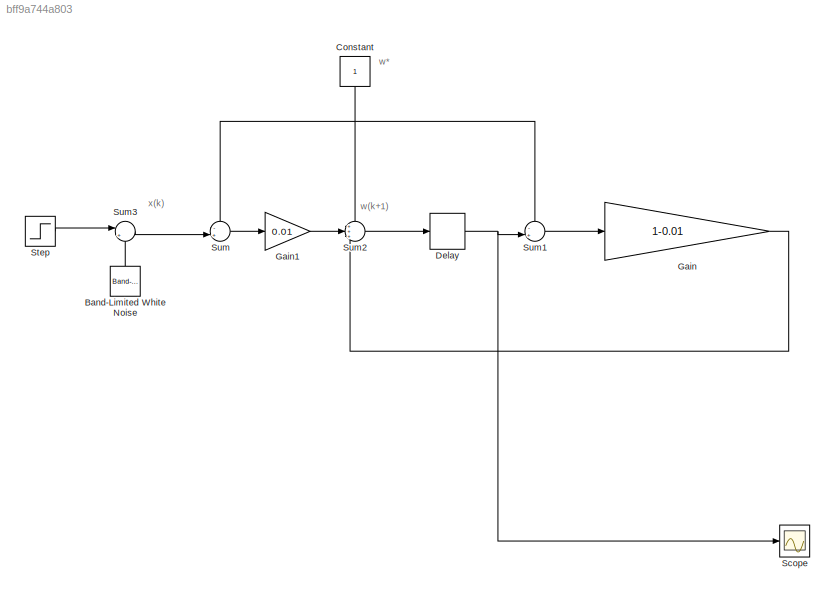
MODEL slx_bff9a744a803
KIND model
CONFIG AbsTol = auto
CONFIG EnableMultiTasking = off
CONFIG FixedStep = 1e-3
CONFIG MaxStep = auto
CONFIG MinStep = auto
CONFIG RelTol = 1e-3
CONFIG SampleTimeConstraint = Unconstrained
CONFIG SolverName = FixedStepAuto
CONFIG StartTime = 0.0
CONFIG StopTime = 10.0
BLOCK [Reference] Band-Limited White Noise  REF=simulink/Sources/Band-Limited
White Noise
  NameLocation = right
  SourceBlock = simulink/Sources/Band-Limited\nWhite Noise
  SourceType = Band-Limited White Noise.
BLOCK [Constant] Constant
  NameLocation = left
BLOCK [Delay] Delay
  DelayLength = 1
  InputPortMap = u0
  InputProcessing = Columns as channels (frame based)
BLOCK [Gain] Gain
  Gain = 1-0.01
BLOCK [Gain] Gain1
  Gain = 0.01
BLOCK [Scope] Scope
  ActiveDisplayYMaximum = 3.1713449479901588
  ActiveDisplayYMinimum = -1.4709219563909364
  Floating = off
  GraphicalSettings = {"AxesScalingProperties":{"AlignXAxis":"Center","AlignYAxis":"Center","AutoScaleXAxisLimits":false,"AxesScaling":"Manual","AxesScalingNumUpdates":10,"ExpandOnly":true,"ScaleAxesLimitsAtStop":false,"XAxisDataRange":100,"YAxisDataRange":80},"DisplayProperties":{"ColorOrder":["auto","auto","auto","auto","auto","auto","auto","auto","auto","auto","auto","auto","auto","auto","auto","auto","auto","auto",...<+1998ch>
  MultipleDisplayCache = [{"MaxYLimMag":2.60932441783068,"MaxYLimReal":3.1713449479901588,"MinYLimMag":0,"MinYLimReal":-1.4709219563909364,"PlotAsMagnitudePhase":false,"ShowGrid":true,"ShowLegend":false,"Title":"%<SignalLabel>","YLabel":""}]
  NumInputPorts = 1
  ScopeFrameLocation = window
  Visible = on
  WasSavedAsWebScope = on
  WindowPosition = [507.000000,76.000000,447.000000,379.000000,]
BLOCK [Step] Step
  After = 2
  SampleTime = 0
BLOCK [Sum] Sum
  Inputs = -+|
BLOCK [Sum] Sum1
  Inputs = -+|
BLOCK [Sum] Sum2
  Inputs = +++
BLOCK [Sum] Sum3
  Inputs = |++
ANNOTATION (root): w(k+1)
ANNOTATION (root): w*
ANNOTATION (root): x(k)
LINE Band-Limited White Noise:1 -> Sum3:2
NET Constant:1 -> Sum1:1, Sum2:1, Sum:1
NET Delay:1 -> Scope:1, Sum1:2
LINE Gain1:1 -> Sum2:2
LINE Gain:1 -> Sum2:3
LINE Step:1 -> Sum3:1
LINE Sum1:1 -> Gain:1
LINE Sum2:1 -> Delay:1
LINE Sum3:1 -> Sum:2
LINE Sum:1 -> Gain1:1
note: NET lines group one-source signal fan-out (src -> all destinations, sorted); 1:1 wires keep LINE
